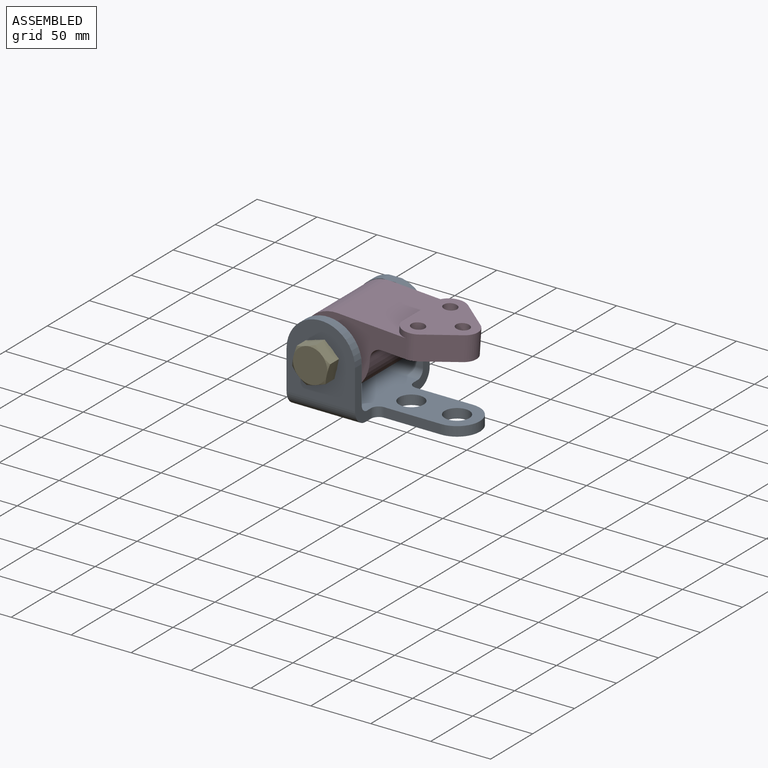
[diagram: assembled view]
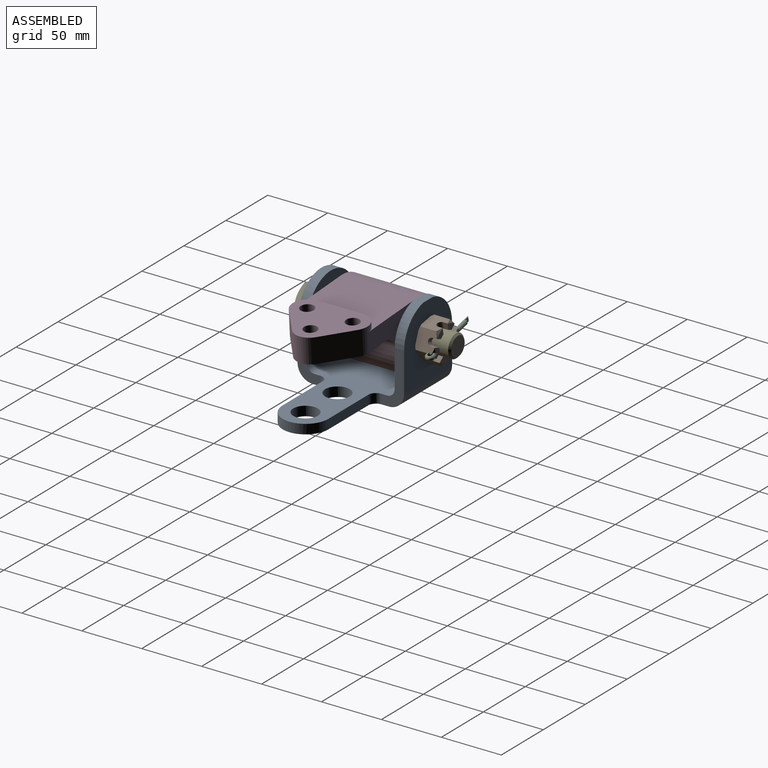
[diagram: assembled view, second angle]
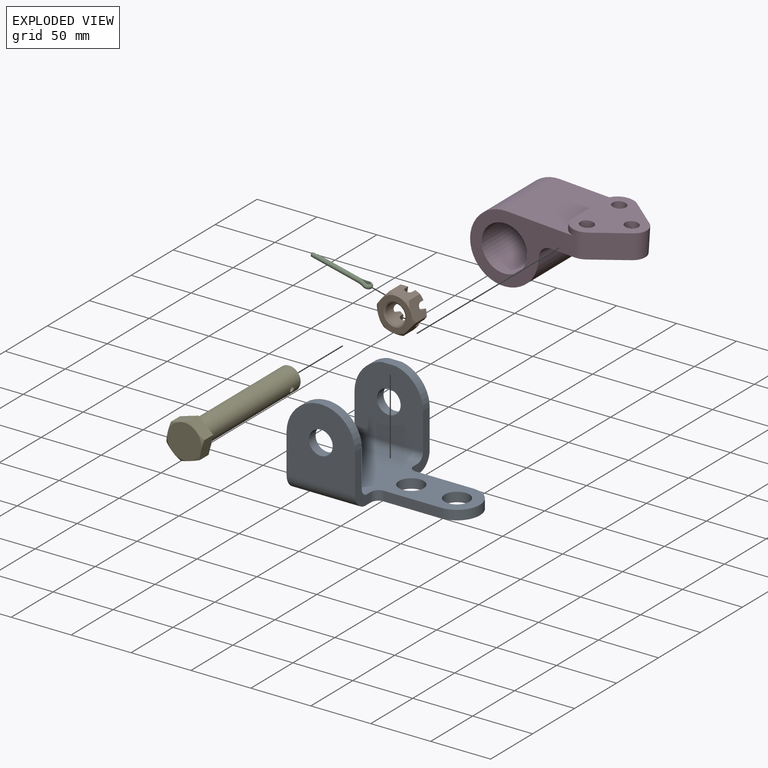
[diagram: exploded view]
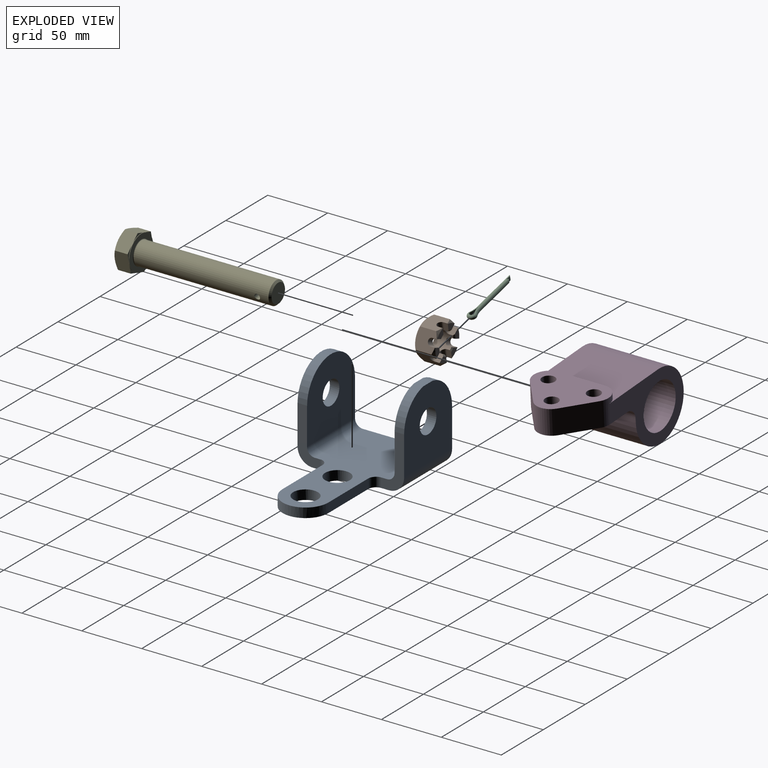
[diagram: exploded view, second angle]
ASSEMBLY  parts=5 mates=4
PART A: 30 faces, bbox 130.2x88.9x73.6 mm
  f0: plane 130.18x60.33mm, normal (0,0,1), area 5421.5mm2, adj f2,f3,f4,f10,f11,f14,f17,f23
  f1: plane 130.18x38.1mm, normal (0,0,-1), area 4134.1mm2, adj f3,f4,f10,f12,f16,f26,f27,f28
  f2: plane 45.44x19.05mm, normal (1,0,0), area 422.3mm2, adj f0,f8,f9,f15,f16,f17,f18,f25
  f3: plane 47.63x7.94mm, normal (0,-1,0), area 378.1mm2, adj f0,f1,f25,f27
  f4: plane 47.66x7.94mm, normal (0,1,0), area 378.3mm2, adj f0,f1,f23,f27
  f5: plane 60.33x57.15mm, normal (0,1,0), area 2815.1mm2, adj f6,f10,f11,f13,f19,f21,f22
  f6: plane 11.13x7.94mm, normal (0,0,1), area 88.4mm2, adj f5,f7,f19,f21
  f7: plane 58.74x57.15mm, normal (0,-1,0), area 2724.4mm2, adj f6,f10,f11,f14,f19,f21,f22
  f8: plane 59.29x57.15mm, normal (0,1,0), area 2728.5mm2, adj f2,f10,f17,f18,f20
  f9: plane 60.82x57.15mm, normal (0,-1,0), area 2816.4mm2, adj f2,f10,f15,f18,f20
  f10: plane 88.9x45.47mm, normal (-1,0,0), area 1248.6mm2, adj f0,f1,f5,f7,f8,f9,f12,f13
  f11: plane 45.47x19.05mm, normal (1,0,0), area 423.2mm2, adj f0,f5,f7,f12,f13,f14,f19,f23
  f12: plane 63.46x12.7mm, normal (0,0,-1), area 734.5mm2, adj f1,f10,f11,f13,f23
  f13: cylinder r=12.7mm len=57.15mm, axis (-1,0,0), area 1140.1mm2, adj f5,f10,f11,f12
  f14: cylinder r=6.35mm len=57.15mm, axis (-1,0,0), area 570mm2, adj f0,f7,f10,f11
  f15: cylinder r=12.7mm len=57.15mm, axis (-1,0,0), area 1137.2mm2, adj f2,f9,f10,f16
  f16: plane 57.15x12.75mm, normal (0,0,-1), area 728.7mm2, adj f1,f2,f10,f15,f24,f26
  f17: cylinder r=6.35mm len=57.15mm, axis (-1,0,0), area 570mm2, adj f0,f2,f8,f10
  f18: cylinder r=28.58mm len=57.15mm, axis (0,-1,0), area 705.1mm2, adj f2,f8,f9,f10
  f19: cylinder r=28.58mm len=27.56mm, axis (0,-1,0), area 308.1mm2, adj f5,f6,f7,f11
  f20: cylinder r=9.92mm len=19.85mm, axis (0,-1,0), area 494.9mm2, adj f8,f9
  f21: cylinder r=28.58mm len=27.56mm, axis (0,-1,0), area 308.1mm2, adj f5,f6,f7,f10
  f22: cylinder r=9.92mm len=19.85mm, axis (0,-1,0), area 494.9mm2, adj f5,f7
  f23: cylinder r=6.35mm len=7.94mm, axis (0,0,1), area 78.9mm2, adj f0,f4,f11,f12
  f24: plane 5.95x0.02mm, normal (-1,0,0), area 0.1mm2, adj f16,f25,f26
  f25: cylinder r=6.35mm len=7.94mm, axis (0,0,1), area 79.2mm2, adj f0,f2,f3,f24,f26
  f26: plane 6.35x6.35mm, normal (0,0,-1), area 8.7mm2, adj f1,f16,f24,f25
  f27: cylinder r=19.05mm len=38.1mm, axis (0,0,1), area 475.1mm2, adj f0,f1,f3,f4
  f28: cylinder r=10.33mm len=20.65mm, axis (0,0,1), area 515mm2, adj f0,f1
  f29: cylinder r=10.33mm len=20.65mm, axis (0,0,1), area 515mm2, adj f0,f1
PART B: 64 faces, bbox 33x33x16.9 mm
  f0: cylinder r=8.33mm len=16.67mm, axis (0,0,1), area 599.6mm2, adj f8,f9,f10,f11,f12,f13,f14,f15
  f1: plane 28.58x28.58mm, normal (0,0,-1), area 356.3mm2, adj f32,f33,f34,f35,f36,f37,f51
  f2: plane 8.68x4.95mm, normal (0,0,1), area 30mm2, adj f12,f16,f41,f48
  f3: plane 7.52x6.81mm, normal (0,0,1), area 30mm2, adj f9,f13,f43,f49
  f4: plane 7.52x6.81mm, normal (0,0,1), area 30mm2, adj f8,f18,f39,f44
  f5: plane 7.52x6.81mm, normal (0,0,1), area 30mm2, adj f11,f15,f42,f46
  f6: plane 7.52x6.81mm, normal (0,0,1), area 30mm2, adj f10,f17,f40,f47
  f7: plane 8.68x4.95mm, normal (0,0,1), area 30mm2, adj f14,f19,f38,f45
  f8: plane 6.56x3.71mm, normal (0,-1,0), area 23.4mm2, adj f0,f4,f22,f26,f39,f44,f62,f63
  f9: plane 6.56x3.71mm, normal (0,1,0), area 23.4mm2, adj f0,f3,f22,f26,f43,f49,f52,f53
  f10: plane 6.56x3.71mm, normal (0,1,0), area 23.4mm2, adj f0,f6,f25,f27,f40,f47,f56,f57
  f11: plane 6.56x3.71mm, normal (0,-1,0), area 23.4mm2, adj f0,f5,f25,f27,f42,f46,f58,f59
  f12: plane 5.69x3.71mm, normal (0.87,0.5,0), area 23.4mm2, adj f0,f2,f23,f28,f41,f48,f54,f55
  f13: plane 5.69x3.71mm, normal (-0.87,-0.5,0), area 23.4mm2, adj f0,f3,f23,f28,f43,f49,f52,f53
  f14: plane 5.69x3.71mm, normal (-0.87,-0.5,0), area 23.4mm2, adj f0,f7,f20,f29,f38,f45,f60,f61
  f15: plane 5.69x3.71mm, normal (0.87,0.5,0), area 23.4mm2, adj f0,f5,f20,f29,f42,f46,f58,f59
  f16: plane 5.69x3.71mm, normal (-0.87,0.5,0), area 23.4mm2, adj f0,f2,f24,f30,f41,f48,f54,f55
  f17: plane 5.69x3.71mm, normal (0.87,-0.5,0), area 23.4mm2, adj f0,f6,f24,f30,f40,f47,f56,f57
  f18: plane 5.69x3.71mm, normal (-0.87,0.5,0), area 23.4mm2, adj f0,f4,f21,f31,f39,f44,f62,f63
  f19: plane 5.69x3.71mm, normal (0.87,-0.5,0), area 23.4mm2, adj f0,f7,f21,f31,f38,f45,f60,f61
  f20: plane 16.62x14.29mm, normal (-0.5,0.87,0), area 220.6mm2, adj f14,f15,f21,f25,f29,f32,f33,f38
  f21: plane 16.62x14.29mm, normal (0.5,0.87,0), area 220.6mm2, adj f18,f19,f20,f22,f31,f33,f34,f38
  f22: plane 16.63x16.51mm, normal (1,0,0), area 220.6mm2, adj f8,f9,f21,f23,f26,f34,f35,f39
  f23: plane 16.62x14.29mm, normal (0.5,-0.87,0), area 220.6mm2, adj f12,f13,f22,f24,f28,f35,f36,f41
  f24: plane 16.62x14.29mm, normal (-0.5,-0.87,0), area 220.6mm2, adj f16,f17,f23,f25,f30,f36,f37,f40
  f25: plane 16.63x16.51mm, normal (-1,0,0), area 220.6mm2, adj f10,f11,f20,f24,f27,f32,f37,f40
  f26: cylinder r=3.05mm len=6.53mm, axis (1,0,0), area 59.8mm2, adj f0,f8,f9,f22
  f27: cylinder r=3.05mm len=6.53mm, axis (1,0,0), area 59.8mm2, adj f0,f10,f11,f25
  f28: cylinder r=3.05mm len=8.7mm, axis (-0.5,0.87,0), area 59.8mm2, adj f0,f12,f13,f23
  f29: cylinder r=3.05mm len=8.7mm, axis (-0.5,0.87,0), area 59.8mm2, adj f0,f14,f15,f20
  f30: cylinder r=3.05mm len=8.7mm, axis (0.5,0.87,0), area 59.8mm2, adj f0,f16,f17,f24
  f31: cylinder r=3.05mm len=8.7mm, axis (0.5,0.87,0), area 59.8mm2, adj f0,f18,f19,f21
  f32: cone r=14.29mm half-angle=49.2deg, axis (0,0,1), area 14.5mm2, adj f1,f20,f25
  f33: cone r=14.29mm half-angle=49.2deg, axis (0,0,1), area 14.5mm2, adj f1,f20,f21
  f34: cone r=14.29mm half-angle=49.2deg, axis (0,0,1), area 14.5mm2, adj f1,f21,f22
  f35: cone r=14.29mm half-angle=49.2deg, axis (0,0,1), area 14.5mm2, adj f1,f22,f23
  f36: cone r=14.29mm half-angle=49.2deg, axis (0,0,1), area 14.5mm2, adj f1,f23,f24
  f37: cone r=14.29mm half-angle=49.2deg, axis (0,0,1), area 14.5mm2, adj f1,f24,f25
  f38: cone r=14.29mm half-angle=49.2deg, axis (0,0,-1), area 13.6mm2, adj f7,f14,f19,f20,f21
  f39: cone r=14.29mm half-angle=49.2deg, axis (0,0,-1), area 13.6mm2, adj f4,f8,f18,f21,f22
  f40: cone r=14.29mm half-angle=49.2deg, axis (0,0,-1), area 13.6mm2, adj f6,f10,f17,f24,f25
  f41: cone r=14.29mm half-angle=49.2deg, axis (0,0,-1), area 13.6mm2, adj f2,f12,f16,f23,f24
  f42: cone r=14.29mm half-angle=49.2deg, axis (0,0,-1), area 13.6mm2, adj f5,f11,f15,f20,f25
  f43: cone r=14.29mm half-angle=49.2deg, axis (0,0,-1), area 13.6mm2, adj f3,f9,f13,f22,f23
  f44: cone r=8.21mm half-angle=55deg, axis (0,0,1), area 0.1mm2, adj f4,f8,f18,f63
  f45: cone r=8.21mm half-angle=55deg, axis (0,0,1), area 0.1mm2, adj f7,f14,f19,f60
  f46: cone r=8.21mm half-angle=55deg, axis (0,0,1), area 0.1mm2, adj f5,f11,f15,f58
  f47: cone r=8.21mm half-angle=55deg, axis (0,0,1), area 0.1mm2, adj f6,f10,f17,f56
  f48: cone r=8.21mm half-angle=55deg, axis (0,0,1), area 0.1mm2, adj f2,f12,f16,f54
  f49: cone r=8.21mm half-angle=55deg, axis (0,0,1), area 0.1mm2, adj f3,f9,f13,f52
  f50: cone r=9.53mm half-angle=55deg, axis (0,0,-1), area 81.6mm2, adj f0,f51
  f51: cylinder r=9.53mm len=19.05mm, axis (0,0,1), area 1.5mm2, adj f1,f50
  f52: cone r=9.53mm half-angle=55deg, axis (0,0,-1), area 0.1mm2, adj f9,f13,f49,f53
  f53: cone r=8.33mm half-angle=55deg, axis (0,0,1), area 4.5mm2, adj f0,f9,f13,f52
  f54: cone r=9.53mm half-angle=55deg, axis (0,0,-1), area 0.1mm2, adj f12,f16,f48,f55
  f55: cone r=8.33mm half-angle=55deg, axis (0,0,1), area 4.5mm2, adj f0,f12,f16,f54
  f56: cone r=9.53mm half-angle=55deg, axis (0,0,-1), area 0.1mm2, adj f10,f17,f47,f57
  f57: cone r=8.33mm half-angle=55deg, axis (0,0,1), area 4.5mm2, adj f0,f10,f17,f56
  f58: cone r=9.53mm half-angle=55deg, axis (0,0,-1), area 0.1mm2, adj f11,f15,f46,f59
  f59: cone r=8.33mm half-angle=55deg, axis (0,0,1), area 4.5mm2, adj f0,f11,f15,f58
  f60: cone r=9.53mm half-angle=55deg, axis (0,0,-1), area 0.1mm2, adj f14,f19,f45,f61
  f61: cone r=8.33mm half-angle=55deg, axis (0,0,1), area 4.5mm2, adj f0,f14,f19,f60
  f62: cone r=8.33mm half-angle=55deg, axis (0,0,1), area 4.5mm2, adj f0,f8,f18,f63
  f63: cone r=9.53mm half-angle=55deg, axis (0,0,-1), area 0.1mm2, adj f8,f18,f44,f62
PART C: 14 faces, bbox 52x8x3.7 mm
  f0: plane 38.67x3.7mm, normal (0,1,0), area 143.1mm2, adj f1,f2,f13
  f1: cylinder r=1.85mm len=40mm, axis (1,0,0), area 227.7mm2, adj f0,f3,f12,f13
  f2: cylinder r=16.37mm len=7.19mm, axis (0,0,-1), area 27.5mm2, adj f0,f3,f4
  f3: torus R=16.37mm, axis (0,0,-1), area 40.1mm2, adj f1,f2,f5
  f4: cylinder r=1.85mm len=3.7mm, axis (0,0,1), area 27.8mm2, adj f2,f5,f6
  f5: torus R=1.85mm, axis (0,0,1), area 71.2mm2, adj f3,f4,f7
  f6: cylinder r=16.37mm len=7.19mm, axis (0,0,-1), area 27.5mm2, adj f4,f7,f9
  f7: torus R=16.37mm, axis (0,0,-1), area 40.1mm2, adj f5,f6,f8
  f8: cylinder r=1.85mm len=36mm, axis (1,0,0), area 204.5mm2, adj f7,f9,f10,f11
  f9: plane 34.67x3.7mm, normal (0,-1,0), area 128.3mm2, adj f6,f8,f10
  f10: plane 3.7x1.33mm, normal (0.57,-0.82,0), area 5.7mm2, adj f8,f9,f11
  f11: plane 3.2x1.31mm, normal (0.58,0.82,0), area 3.6mm2, adj f8,f10
  f12: plane 3.2x1.31mm, normal (0.58,-0.82,0), area 3.6mm2, adj f1,f13
  f13: plane 3.7x1.33mm, normal (0.57,0.82,0), area 5.7mm2, adj f0,f1,f12
PART D: 18 faces, bbox 123.1x63.5x61.9 mm
  f0: plane 63.5x48.98mm, normal (0,0,1), area 1917.2mm2, adj f1,f10,f11,f12,f13,f14,f15,f16
  f1: plane 40.6x4.78mm, normal (1,0,0), area 193.9mm2, adj f0,f8,f12,f17
  f2: plane 86.83x57.15mm, normal (0,-1,0), area 2091mm2, adj f4,f5,f6,f7,f8,f9,f12
  f3: plane 86.58x57.15mm, normal (0,1,0), area 2087.1mm2, adj f4,f5,f6,f7,f8,f9,f17
  f4: plane 63.5x56.44mm, normal (0,0,-1), area 2457.2mm2, adj f2,f3,f5,f10,f11,f12,f13,f14
  f5: cylinder r=9.53mm len=63.5mm, axis (0,1,0), area 950.1mm2, adj f2,f3,f4,f6
  f6: plane 63.5x3.18mm, normal (-1,0,0), area 201.6mm2, adj f2,f3,f5,f7
  f7: cylinder r=28.57mm len=63.5mm, axis (0,1,0), area 8550.7mm2, adj f2,f3,f6,f8
  f8: plane 63.5x58.26mm, normal (0,0,1), area 2959.4mm2, adj f1,f2,f3,f7,f12,f17
  f9: cylinder r=19.05mm len=63.5mm, axis (0,1,0), area 7600.6mm2, adj f2,f3
  f10: plane 23.18x20.65mm, normal (-0.62,-0.78,0), area 611.8mm2, adj f0,f4,f11,f12
  f11: cylinder r=12.7mm len=20.65mm, axis (0,0,1), area 485.5mm2, adj f0,f4,f10,f16
  f12: cylinder r=12.7mm len=21mm, axis (0,0,1), area 282.2mm2, adj f0,f1,f2,f4,f8,f10
  f13: cylinder r=5.56mm len=20.65mm, axis (0,0,1), area 721.7mm2, adj f0,f4
  f14: cylinder r=5.56mm len=20.65mm, axis (0,0,1), area 721.7mm2, adj f0,f4
  f15: cylinder r=5.56mm len=20.65mm, axis (0,0,1), area 721.7mm2, adj f0,f4
  f16: plane 23.18x20.65mm, normal (-0.63,0.78,0), area 616.7mm2, adj f0,f4,f11,f17
  f17: cylinder r=12.7mm len=20.65mm, axis (0,0,1), area 262.2mm2, adj f0,f1,f3,f4,f8,f16
PART E: 26 faces, bbox 126.6x33x33 mm
  f0: plane 28.58x28.58mm, normal (1,0,0), area 325.1mm2, adj f10,f24
  f1: cylinder r=9.53mm len=112.28mm, axis (-1,0,0), area 6683.8mm2, adj f2,f24,f25
  f2: cone r=8.01mm half-angle=45deg, axis (-1,0,0), area 117.9mm2, adj f1,f3
  f3: plane 16.03x16.03mm, normal (1,0,0), area 201.7mm2, adj f2
  f4: plane 12.37x7.14mm, normal (1,0,0), area 11mm2, adj f10,f18,f23
  f5: plane 14.29x4.12mm, normal (1,0,0), area 11mm2, adj f10,f22,f23
  f6: plane 12.37x7.14mm, normal (1,0,0), area 11mm2, adj f10,f21,f22
  f7: plane 12.37x7.14mm, normal (1,0,0), area 11mm2, adj f10,f20,f21
  f8: plane 14.29x4.12mm, normal (1,0,0), area 11mm2, adj f10,f19,f20
  f9: plane 12.37x7.14mm, normal (1,0,0), area 11mm2, adj f10,f18,f19
  f10: cylinder r=14.29mm len=28.58mm, axis (-1,0,0), area 34.2mm2, adj f0,f4,f5,f6,f7,f8,f9
  f11: plane 28.58x28.58mm, normal (-1,0,0), area 641.3mm2, adj f12,f13,f14,f15,f16,f17
  f12: cone r=14.29mm half-angle=60deg, axis (1,0,0), area 12.7mm2, adj f11,f22,f23
  f13: cone r=14.29mm half-angle=60deg, axis (1,0,0), area 12.7mm2, adj f11,f21,f22
  f14: cone r=14.29mm half-angle=60deg, axis (1,0,0), area 12.7mm2, adj f11,f20,f21
  f15: cone r=14.29mm half-angle=60deg, axis (1,0,0), area 12.7mm2, adj f11,f19,f20
  f16: cone r=14.29mm half-angle=60deg, axis (1,0,0), area 12.7mm2, adj f11,f18,f23
  f17: cone r=14.29mm half-angle=60deg, axis (1,0,0), area 12.7mm2, adj f11,f18,f19
  f18: plane 16.51x11.89mm, normal (0,0,-1), area 188.9mm2, adj f4,f9,f16,f17,f19,f23
  f19: plane 14.29x11.89mm, normal (0,-0.87,-0.5), area 188.9mm2, adj f8,f9,f15,f17,f18,f20
  f20: plane 14.29x11.89mm, normal (0,-0.87,0.5), area 188.9mm2, adj f7,f8,f14,f15,f19,f21
  f21: plane 16.51x11.89mm, normal (0,0,1), area 188.9mm2, adj f6,f7,f13,f14,f20,f22
  f22: plane 14.29x11.89mm, normal (0,0.87,0.5), area 188.9mm2, adj f5,f6,f12,f13,f21,f23
  f23: plane 14.29x11.89mm, normal (0,0.87,-0.5), area 188.9mm2, adj f4,f5,f12,f16,f18,f22
  f24: torus R=10.03mm, axis (1,0,0), area 48.7mm2, adj f0,f1
  f25: cylinder r=2.38mm len=19.05mm, axis (0,0,1), area 285mm2, adj f1
PLACE A t=(-58.58,-34.98,-89.33)mm fixed
PLACE B rot(axis=(-0.97,-0.17,-0.17),91.7deg) t=(-30,23.92,-52.75)mm
PLACE C rot(axis=(0,-1,0),166.6deg) t=(-12.84,21.67,-56.85)mm
PLACE D rot(axis=(0.03,0,1),180deg) t=(-30,-63.55,-52.75)mm
PLACE E rot(axis=(0.62,0.62,0.49),128deg) t=(-30,-93.79,-52.75)mm
MATE revolute A.f20 <-> D.f7  axis (0,-1,0) through (-30,-0.05,-52.75)mm
MATE revolute E.f1 <-> A.f20  axis (0,1,0) through (-30,-81.01,-52.75)mm
MATE revolute A.f20 <-> B.f0  axis (0,1,0) through (-30,7.89,-52.75)mm
MATE fastened C.f1 <-> E.f25  axis (-0.97,0,0.23) through (-20.62,21.67,-54.99)mm
